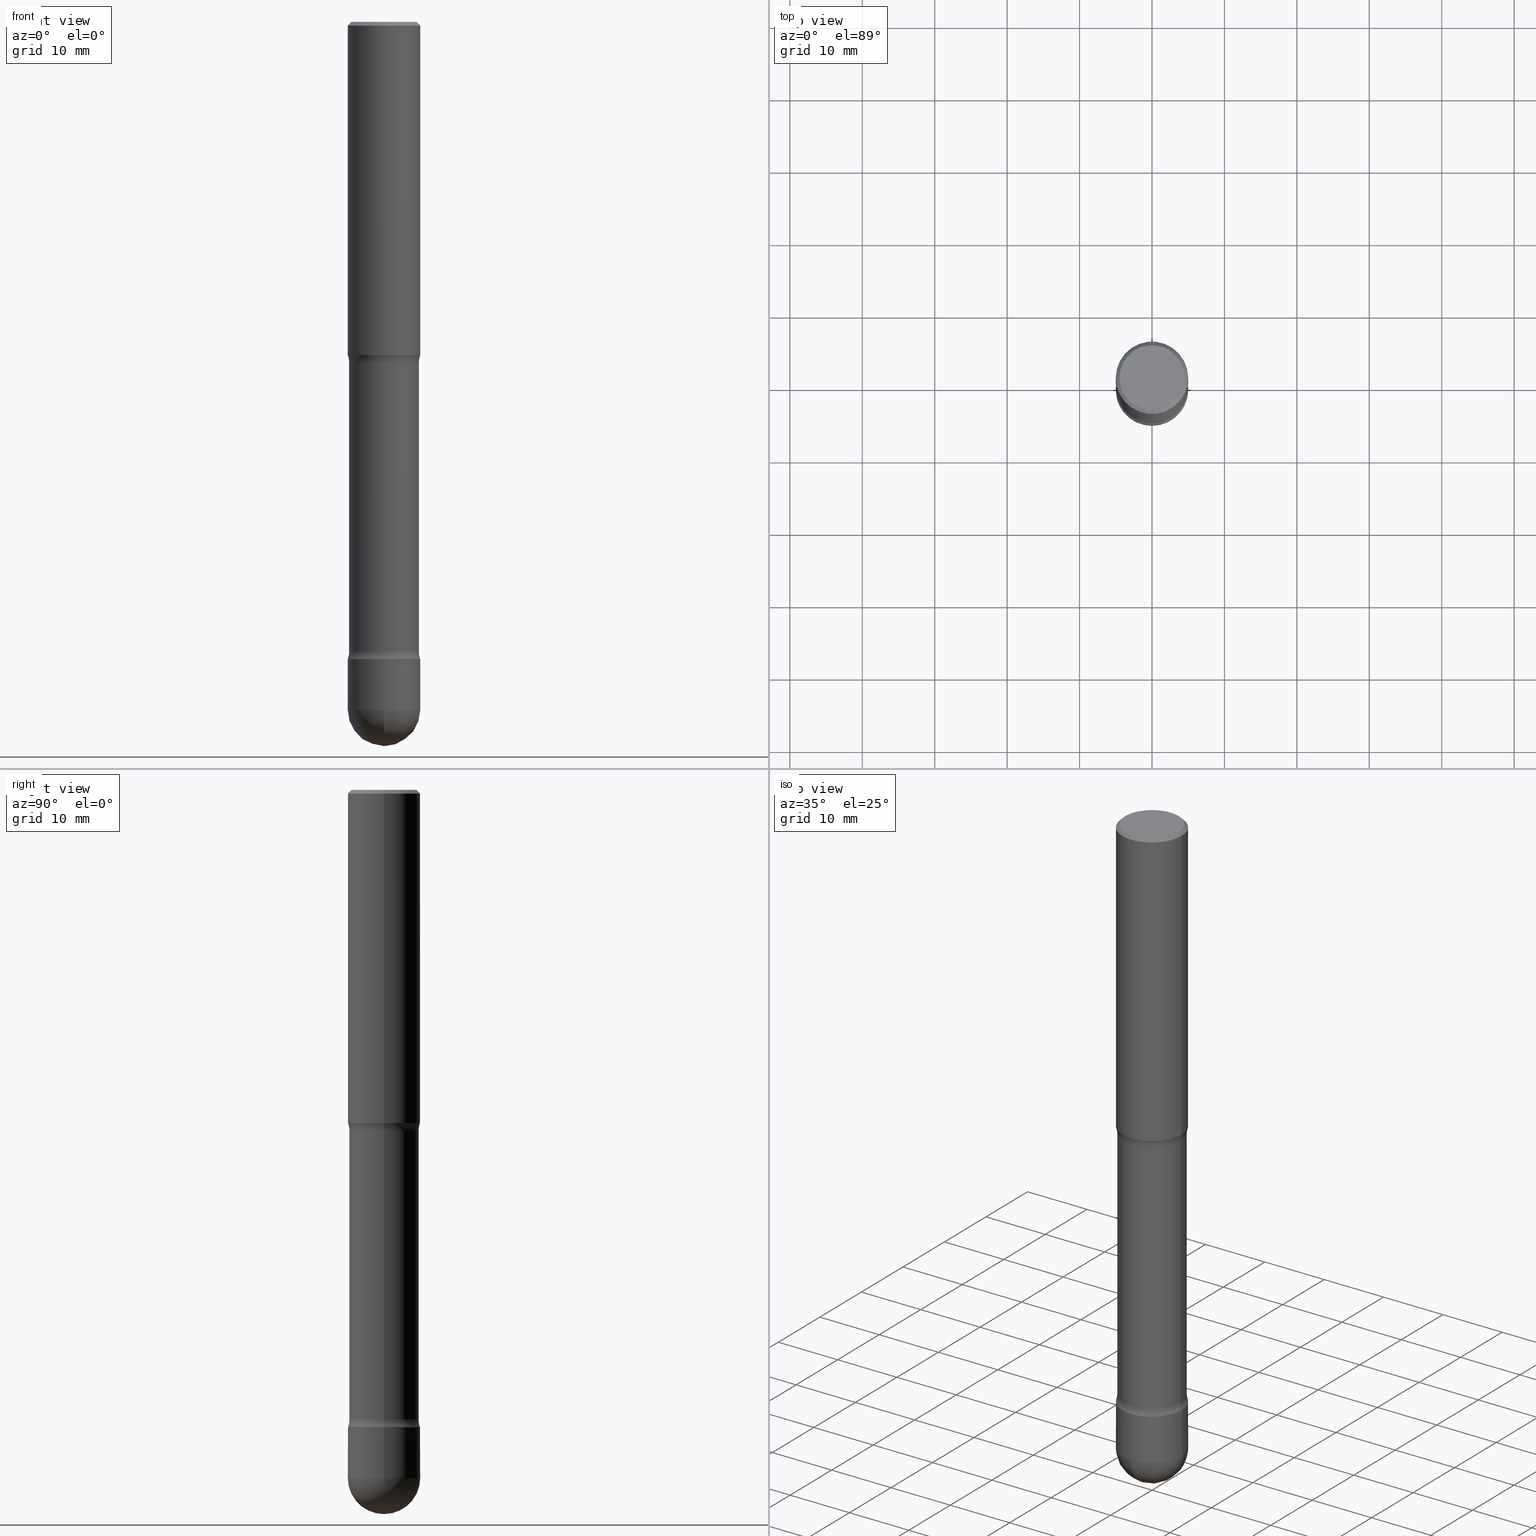
[diagram: canonical four-view strip — front | top / right | iso, engineering-drawing reading convention]
A machine part, canonical four-view strip (front | top / right | iso — engineering-drawing reading convention). The complete STEP part file that produces these views, byte-faithful:
ISO-10303-21;
HEADER;
FILE_DESCRIPTION (( 'STEP AP203' ),
    '1' );
FILE_NAME ('44583.STEP',
    '2024-02-29T19:25:22',
    ( '' ),
    ( '' ),
    'SwSTEP 2.0',
    'SolidWorks 2023',
    '' );
FILE_SCHEMA (( 'CONFIG_CONTROL_DESIGN' ));
ENDSEC;

DATA;
#1 = ORIENTED_EDGE ( 'NONE', *, *, #542, .F. ) ;
#2 = ORIENTED_EDGE ( 'NONE', *, *, #195, .T. ) ;
#3 = CARTESIAN_POINT ( 'NONE',  ( 9.146420155453339430E-29, -1.305866392947419182E-14, -3.740150000000000308 ) ) ;
#4 = PRODUCT_DEFINITION_SHAPE ( 'NONE', 'NONE',  #67 ) ;
#5 = CIRCLE ( 'NONE', #526, 0.1768499999999997851 ) ;
#6 = CIRCLE ( 'NONE', #206, 0.1968499999999998307 ) ;
#7 = ORIENTED_EDGE ( 'NONE', *, *, #407, .T. ) ;
#8 = DIRECTION ( 'NONE',  ( -2.438088387897960049E-29, 3.491481338843145188E-15, 1.000000000000000000 ) ) ;
#9 = SPHERICAL_SURFACE ( 'NONE', #527, 0.1968499999999998307 ) ;
#10 = DIRECTION ( 'NONE',  ( 2.445468806185136597E-29, -3.491481338843145583E-15, -1.000000000000000000 ) ) ;
#11 = ORIENTED_EDGE ( 'NONE', *, *, #551, .T. ) ;
#12 = EDGE_CURVE ( 'NONE', #530, #308, #418, .T. ) ;
#13 = FACE_OUTER_BOUND ( 'NONE', #466, .T. ) ;
#14 = CIRCLE ( 'NONE', #284, 0.1968499999999993588 ) ;
#15 = EDGE_LOOP ( 'NONE', ( #414, #11, #221, #268 ) ) ;
#16 = CARTESIAN_POINT ( 'NONE',  ( 4.890937612370220610E-31, -6.982962677686216421E-17, -0.01999999999999978531 ) ) ;
#17 = EDGE_CURVE ( 'NONE', #520, #308, #348, .T. ) ;
#18 = CARTESIAN_POINT ( 'NONE',  ( -0.1967173271255960032, -1.072163397737945290E-14, -3.464232672874403285 ) ) ;
#19 = CARTESIAN_POINT ( 'NONE',  ( 0.1968499999999998307, -1.420318657638186952E-15, -0.01999999999999978531 ) ) ;
#20 = EDGE_LOOP ( 'NONE', ( #62, #359, #282, #273, #309 ) ) ;
#21 = ORIENTED_EDGE ( 'NONE', *, *, #434, .T. ) ;
#22 = VECTOR ( 'NONE', #442, 39.37007874015748143 ) ;
#23 = AXIS2_PLACEMENT_3D ( 'NONE', #211, #554, #355 ) ;
#24 = CARTESIAN_POINT ( 'NONE',  ( -0.3143499999999886940, -9.752591404053135699E-15, -3.421953194726922831 ) ) ;
#25 = DIRECTION ( 'NONE',  ( 2.445468806185136597E-29, -3.491481338843145583E-15, -1.000000000000000000 ) ) ;
#26 = DIRECTION ( 'NONE',  ( 2.445468806185136877E-29, -3.491481338843145188E-15, -1.000000000000000000 ) ) ;
#27 = CARTESIAN_POINT ( 'NONE',  ( -1.374596203102447142E-15, -0.1968500000000126260, -3.740149999999999864 ) ) ;
#28 = VERTEX_POINT ( 'NONE', #249 ) ;
#29 = EDGE_CURVE ( 'NONE', #545, #312, #169, .T. ) ;
#30 =( NAMED_UNIT ( * ) PLANE_ANGLE_UNIT ( ) SI_UNIT ( $, .RADIAN. ) );
#31 = AXIS2_PLACEMENT_3D ( 'NONE', #212, #395, #306 ) ;
#32 = CYLINDRICAL_SURFACE ( 'NONE', #303, 0.1968499999999993311 ) ;
#33 = ORIENTED_EDGE ( 'NONE', *, *, #29, .F. ) ;
#34 = PERSON_AND_ORGANIZATION ( #267, #362 ) ;
#35 = EDGE_CURVE ( 'NONE', #49, #253, #397, .T. ) ;
#36 = DATE_AND_TIME ( #517, #172 ) ;
#37 = EDGE_CURVE ( 'NONE', #28, #492, #369, .T. ) ;
#38 = EDGE_CURVE ( 'NONE', #497, #539, #493, .T. ) ;
#39 = CARTESIAN_POINT ( 'NONE',  ( 8.472571225909024784E-29, -1.209658624655596216E-14, -3.464599999999999902 ) ) ;
#40 = DIRECTION ( 'NONE',  ( 1.000000000000000000, -6.982962677686266711E-15, 4.876176775795935793E-29 ) ) ;
#41 = EDGE_LOOP ( 'NONE', ( #97, #272, #74, #177 ) ) ;
#42 = CARTESIAN_POINT ( 'NONE',  ( 0.000000000000000000, 0.000000000000000000, 0.000000000000000000 ) ) ;
#43 = AXIS2_PLACEMENT_3D ( 'NONE', #24, #291, #190 ) ;
#44 = AXIS2_PLACEMENT_3D ( 'NONE', #271, #121, #209 ) ;
#45 = CARTESIAN_POINT ( 'NONE',  ( 8.472571225909024784E-29, -1.209658624655596216E-14, -3.464599999999999902 ) ) ;
#46 = ORIENTED_EDGE ( 'NONE', *, *, #37, .F. ) ;
#47 = APPROVAL_ROLE ( '' ) ;
#48 = DIRECTION ( 'NONE',  ( -2.445468806185136597E-29, 3.491481338843145583E-15, 1.000000000000000000 ) ) ;
#49 = VERTEX_POINT ( 'NONE', #242 ) ;
#51 = AXIS2_PLACEMENT_3D ( 'NONE', #435, #164, #561 ) ;
#50 = DIRECTION ( 'NONE',  ( -2.445468806185136597E-29, 3.491481338843145583E-15, 1.000000000000000000 ) ) ;
#52 = LOCAL_TIME ( 14, 25, 22.00000000000000000, #556 ) ;
#53 = EDGE_CURVE ( 'NONE', #253, #49, #233, .T. ) ;
#54 = APPROVAL ( #398, 'UNSPECIFIED' ) ;
#55 = DIRECTION ( 'NONE',  ( -2.445468806185136597E-29, 3.491481338843145583E-15, 1.000000000000000000 ) ) ;
#56 = DIRECTION ( 'NONE',  ( 2.445468806185136597E-29, -3.491481338843145583E-15, -1.000000000000000000 ) ) ;
#57 = EDGE_CURVE ( 'NONE', #495, #530, #387, .T. ) ;
#58 = CARTESIAN_POINT ( 'NONE',  ( 1.371104721763778671E-15, 0.1963499999999872847, -3.464600000000000346 ) ) ;
#59 = EDGE_LOOP ( 'NONE', ( #156, #509, #524, #1, #427 ) ) ;
#60 = DIRECTION ( 'NONE',  ( 2.445468806185136597E-29, -3.491481338843145583E-15, -1.000000000000000000 ) ) ;
#61 = CIRCLE ( 'NONE', #314, 0.1968499999999998307 ) ;
#62 = ORIENTED_EDGE ( 'NONE', *, *, #167, .F. ) ;
#63 = DIRECTION ( 'NONE',  ( -1.000000000000000000, 6.982962677686267499E-15, 0.000000000000000000 ) ) ;
#64 = DIRECTION ( 'NONE',  ( 1.000000000000000000, -6.982962677686271444E-15, 0.000000000000000000 ) ) ;
#65 = ORIENTED_EDGE ( 'NONE', *, *, #396, .F. ) ;
#66 = CALENDAR_DATE ( 2024, 29, 2 ) ;
#67 = PRODUCT_DEFINITION ( 'UNKNOWN', '', #234, #331 ) ;
#68 = DIRECTION ( 'NONE',  ( 2.438088387897960049E-29, -3.491481338843145188E-15, -1.000000000000000000 ) ) ;
#69 = AXIS2_PLACEMENT_3D ( 'NONE', #376, #194, #63 ) ;
#70 = AXIS2_PLACEMENT_3D ( 'NONE', #263, #94, #487 ) ;
#71 = CARTESIAN_POINT ( 'NONE',  ( -0.1968499999999998307, 1.304766576325678310E-15, -0.01999999999999978531 ) ) ;
#72 = APPLICATION_CONTEXT ( 'configuration controlled 3d designs of mechanical parts and assemblies' ) ;
#73 =( LENGTH_UNIT ( ) NAMED_UNIT ( * ) SI_UNIT ( $, .METRE. ) );
#74 = ORIENTED_EDGE ( 'NONE', *, *, #213, .T. ) ;
#75 = DATE_AND_TIME ( #264, #411 ) ;
#76 = LINE ( 'NONE', #168, #22 ) ;
#77 = AXIS2_PLACEMENT_3D ( 'NONE', #150, #459, #237 ) ;
#78 = APPROVAL_PERSON_ORGANIZATION ( #34, #91, #47 ) ;
#79 = ADVANCED_FACE ( 'NONE', ( #106 ), #223, .T. ) ;
#80 = ADVANCED_FACE ( 'NONE', ( #203 ), #115, .T. ) ;
#81 = FACE_OUTER_BOUND ( 'NONE', #20, .T. ) ;
#82 = SHAPE_DEFINITION_REPRESENTATION ( #4, #187 ) ;
#83 = VERTEX_POINT ( 'NONE', #27 ) ;
#84 = AXIS2_PLACEMENT_3D ( 'NONE', #39, #354, #522 ) ;
#85 = EDGE_LOOP ( 'NONE', ( #405, #245, #285, #474 ) ) ;
#86 = APPROVAL_PERSON_ORGANIZATION ( #256, #54, #127 ) ;
#87 = DIRECTION ( 'NONE',  ( -0.7071067811866460495, 7.493145998870710725E-15, 0.7071067811864489849 ) ) ;
#88 = VERTEX_POINT ( 'NONE', #386 ) ;
#89 = DIRECTION ( 'NONE',  ( 2.445468806185136877E-29, -3.491481338843145188E-15, -1.000000000000000000 ) ) ;
#90 = ADVANCED_FACE ( 'NONE', ( #261 ), #347, .T. ) ;
#91 = APPROVAL ( #481, 'UNSPECIFIED' ) ;
#92 = FACE_OUTER_BOUND ( 'NONE', #15, .T. ) ;
#93 = AXIS2_PLACEMENT_3D ( 'NONE', #507, #472, #432 ) ;
#94 = DIRECTION ( 'NONE',  ( 2.445468806185136597E-29, -3.491481338843145583E-15, -1.000000000000000000 ) ) ;
#95 = CARTESIAN_POINT ( 'NONE',  ( -0.1963499999999993584, -1.069948931888517385E-14, -3.464599999999999902 ) ) ;
#96 = DIRECTION ( 'NONE',  ( -1.000000000000000000, 6.982962677686264344E-15, 0.000000000000000000 ) ) ;
#97 = ORIENTED_EDGE ( 'NONE', *, *, #407, .F. ) ;
#98 = FACE_OUTER_BOUND ( 'NONE', #186, .T. ) ;
#99 = ORIENTED_EDGE ( 'NONE', *, *, #551, .F. ) ;
#100 = CIRCLE ( 'NONE', #475, 0.1968499999999993033 ) ;
#101 = DIRECTION ( 'NONE',  ( 2.445468806185136597E-29, -3.491481338843145583E-15, -1.000000000000000000 ) ) ;
#102 = LOCAL_TIME ( 14, 25, 22.00000000000000000, #464 ) ;
#103 = DIRECTION ( 'NONE',  ( 2.445468806185136597E-29, -3.491481338843145583E-15, -1.000000000000000000 ) ) ;
#104 = ORIENTED_EDGE ( 'NONE', *, *, #29, .T. ) ;
#105 = PERSON_AND_ORGANIZATION_ROLE ( 'creator' ) ;
#106 = FACE_OUTER_BOUND ( 'NONE', #356, .T. ) ;
#107 = ORIENTED_EDGE ( 'NONE', *, *, #318, .F. ) ;
#108 = ADVANCED_FACE ( 'NONE', ( #81 ), #32, .T. ) ;
#109 = ORIENTED_EDGE ( 'NONE', *, *, #375, .T. ) ;
#110 = CARTESIAN_POINT ( 'NONE',  ( -0.1968499999999998307, 1.304766576325678310E-15, -0.01999999999999978531 ) ) ;
#111 = PERSON_AND_ORGANIZATION ( #267, #362 ) ;
#112 = AXIS2_PLACEMENT_3D ( 'NONE', #155, #328, #499 ) ;
#113 = CC_DESIGN_APPROVAL ( #91, ( #234 ) ) ;
#114 = EDGE_CURVE ( 'NONE', #326, #83, #410, .T. ) ;
#115 = CYLINDRICAL_SURFACE ( 'NONE', #93, 0.1893499999999998795 ) ;
#116 = DIRECTION ( 'NONE',  ( -2.445468806185136877E-29, 3.491481338843145188E-15, 1.000000000000000000 ) ) ;
#117 = VERTEX_POINT ( 'NONE', #394 ) ;
#118 = CC_DESIGN_DATE_AND_TIME_ASSIGNMENT ( #380, #431, ( #67 ) ) ;
#119 = DATE_AND_TIME ( #441, #52 ) ;
#120 = FACE_OUTER_BOUND ( 'NONE', #479, .T. ) ;
#121 = DIRECTION ( 'NONE',  ( -2.445468806185136597E-29, 3.491481338843145583E-15, 1.000000000000000000 ) ) ;
#122 = ORIENTED_EDGE ( 'NONE', *, *, #531, .T. ) ;
#123 = AXIS2_PLACEMENT_3D ( 'NONE', #371, #429, #537 ) ;
#124 = DATE_TIME_ROLE ( 'classification_date' ) ;
#125 = ADVANCED_FACE ( 'NONE', ( #390 ), #166, .T. ) ;
#126 = EDGE_LOOP ( 'NONE', ( #382, #346, #239, #289 ) ) ;
#127 = APPROVAL_ROLE ( '' ) ;
#128 = DIRECTION ( 'NONE',  ( 0.7071067811866460495, -2.468850131083289285E-15, 0.7071067811864489849 ) ) ;
#129 = ORIENTED_EDGE ( 'NONE', *, *, #529, .T. ) ;
#130 = ORIENTED_EDGE ( 'NONE', *, *, #383, .F. ) ;
#131 = FACE_OUTER_BOUND ( 'NONE', #41, .T. ) ;
#132 = CARTESIAN_POINT ( 'NONE',  ( 0.3143499999999884165, -8.628570775016575116E-15, -1.853646805273080567 ) ) ;
#133 = EDGE_CURVE ( 'NONE', #83, #513, #552, .T. ) ;
#134 = DIRECTION ( 'NONE',  ( 2.445468806185136597E-29, -3.491481338843145583E-15, -1.000000000000000000 ) ) ;
#135 = VECTOR ( 'NONE', #128, 39.37007874015748143 ) ;
#136 = AXIS2_PLACEMENT_3D ( 'NONE', #510, #157, #501 ) ;
#137 = EDGE_LOOP ( 'NONE', ( #368, #559 ) ) ;
#138 = DIRECTION ( 'NONE',  ( -1.000000000000000000, 6.982962677686266711E-15, 0.000000000000000000 ) ) ;
#139 = CARTESIAN_POINT ( 'NONE',  ( 9.602559767347137983E-29, -1.378212278938728887E-14, -3.937000000000000277 ) ) ;
#140 = VERTEX_POINT ( 'NONE', #392 ) ;
#141 = UNCERTAINTY_MEASURE_WITH_UNIT (LENGTH_MEASURE( 1.000000000000000082E-05 ), #254, 'distance_accuracy_value', 'NONE');
#142 = EDGE_CURVE ( 'NONE', #539, #497, #14, .T. ) ;
#143 = EDGE_CURVE ( 'NONE', #513, #117, #313, .T. ) ;
#144 = AXIS2_PLACEMENT_3D ( 'NONE', #515, #558, #258 ) ;
#145 = AXIS2_PLACEMENT_3D ( 'NONE', #521, #219, #525 ) ;
#146 = CARTESIAN_POINT ( 'NONE',  ( -0.1968499999999993033, -1.117892171267132551E-14, -3.740150000000000308 ) ) ;
#147 = VERTEX_POINT ( 'NONE', #165 ) ;
#148 = ORIENTED_EDGE ( 'NONE', *, *, #213, .F. ) ;
#149 = ADVANCED_FACE ( 'NONE', ( #262 ), #176, .T. ) ;
#150 = CARTESIAN_POINT ( 'NONE',  ( 4.533035439980052208E-29, -6.471973229417174909E-15, -1.853646805273080567 ) ) ;
#151 = DIRECTION ( 'NONE',  ( -0.7071067811865523467, 2.468850131082307548E-15, -0.7071067811865426878 ) ) ;
#152 = AXIS2_PLACEMENT_3D ( 'NONE', #563, #351, #311 ) ;
#153 = DIRECTION ( 'NONE',  ( 1.000000000000000000, 0.000000000000000000, 0.000000000000000000 ) ) ;
#154 = SECURITY_CLASSIFICATION ( '', '', #208 ) ;
#155 = CARTESIAN_POINT ( 'NONE',  ( 0.000000000000000000, 0.000000000000000000, 0.000000000000000000 ) ) ;
#156 = ORIENTED_EDGE ( 'NONE', *, *, #175, .T. ) ;
#157 = DIRECTION ( 'NONE',  ( 2.445468806185136597E-29, -3.491481338843145583E-15, -1.000000000000000000 ) ) ;
#158 = ORIENTED_EDGE ( 'NONE', *, *, #320, .T. ) ;
#159 = CALENDAR_DATE ( 2024, 29, 2 ) ;
#160 = DIRECTION ( 'NONE',  ( 2.445468806185136597E-29, -3.491481338843145583E-15, -1.000000000000000000 ) ) ;
#161 = CARTESIAN_POINT ( 'NONE',  ( -0.1768499999999997851, 1.234936949548814815E-15, -8.623518627995101929E-30 ) ) ;
#162 = DIRECTION ( 'NONE',  ( -2.445468806185136597E-29, 3.491481338843145583E-15, 1.000000000000000000 ) ) ;
#163 = CARTESIAN_POINT ( 'NONE',  ( -0.1893499999999997130, -1.062546173876383384E-14, -3.421953194726919723 ) ) ;
#164 = DIRECTION ( 'NONE',  ( -2.445468806185136597E-29, 3.491481338843145583E-15, 1.000000000000000000 ) ) ;
#165 = CARTESIAN_POINT ( 'NONE',  ( 0.1967173271255960032, -1.344488255962380683E-14, -3.464232672874403285 ) ) ;
#166 = CYLINDRICAL_SURFACE ( 'NONE', #565, 0.1968499999999999417 ) ;
#167 = EDGE_CURVE ( 'NONE', #326, #539, #76, .T. ) ;
#168 = CARTESIAN_POINT ( 'NONE',  ( -0.1968499999999993311, 1.398703375343752463E-15, -9.682923725166748645E-30 ) ) ;
#169 = CIRCLE ( 'NONE', #43, 0.1249999999999887590 ) ;
#170 = ORIENTED_EDGE ( 'NONE', *, *, #383, .T. ) ;
#171 = AXIS2_PLACEMENT_3D ( 'NONE', #440, #162, #343 ) ;
#172 = LOCAL_TIME ( 14, 25, 22.00000000000000000, #349 ) ;
#173 = ORIENTED_EDGE ( 'NONE', *, *, #114, .F. ) ;
#174 = PERSON_AND_ORGANIZATION_ROLE ( 'design_supplier' ) ;
#175 = EDGE_CURVE ( 'NONE', #117, #326, #100, .T. ) ;
#176 = CYLINDRICAL_SURFACE ( 'NONE', #152, 0.1968499999999999417 ) ;
#177 = ORIENTED_EDGE ( 'NONE', *, *, #396, .T. ) ;
#178 = DIRECTION ( 'NONE',  ( 2.445468806185136597E-29, -3.491481338843145583E-15, -1.000000000000000000 ) ) ;
#179 = DIRECTION ( 'NONE',  ( -2.445468806185136597E-29, 3.491481338843145583E-15, 1.000000000000000000 ) ) ;
#180 = AXIS2_PLACEMENT_3D ( 'NONE', #321, #60, #232 ) ;
#181 = DIRECTION ( 'NONE',  ( -6.982962677686266711E-15, -1.000000000000000000, 3.491481338843145583E-15 ) ) ;
#182 = CARTESIAN_POINT ( 'NONE',  ( 8.472571225909024784E-29, -1.209658624655596216E-14, -3.464599999999999902 ) ) ;
#183 = ORIENTED_EDGE ( 'NONE', *, *, #413, .F. ) ;
#184 = ADVANCED_FACE ( 'NONE', ( #120 ), #478, .F. ) ;
#185 = DIRECTION ( 'NONE',  ( 1.000000000000000000, -6.982962677686265922E-15, 4.876176775795935793E-29 ) ) ;
#186 = EDGE_LOOP ( 'NONE', ( #502, #450 ) ) ;
#187 = ADVANCED_BREP_SHAPE_REPRESENTATION ( '44583', ( #363, #549, #259 ), #286 ) ;
#188 = VECTOR ( 'NONE', #471, 39.37007874015748143 ) ;
#189 = VECTOR ( 'NONE', #384, 39.37007874015748143 ) ;
#190 = DIRECTION ( 'NONE',  ( 1.000000000000000000, -6.982962677686269866E-15, 0.000000000000000000 ) ) ;
#191 = APPLICATION_CONTEXT ( 'configuration controlled 3d designs of mechanical parts and assemblies' ) ;
#192 = LINE ( 'NONE', #329, #458 ) ;
#193 = ORIENTED_EDGE ( 'NONE', *, *, #529, .F. ) ;
#194 = DIRECTION ( 'NONE',  ( 2.445468806185136597E-29, -3.491481338843145583E-15, -1.000000000000000000 ) ) ;
#195 = EDGE_CURVE ( 'NONE', #147, #140, #338, .T. ) ;
#196 = CARTESIAN_POINT ( 'NONE',  ( 4.428744008001288403E-29, -6.323072704644945461E-15, -1.811000000000002608 ) ) ;
#197 = AXIS2_PLACEMENT_3D ( 'NONE', #132, #274, #528 ) ;
#198 = PERSON_AND_ORGANIZATION_ROLE ( 'design_owner' ) ;
#199 = AXIS2_PLACEMENT_3D ( 'NONE', #460, #339, #204 ) ;
#200 = EDGE_LOOP ( 'NONE', ( #301, #260, #129, #130 ) ) ;
#201 = APPLICATION_PROTOCOL_DEFINITION ( 'international standard', 'config_control_design', 1994, #191 ) ;
#202 = CARTESIAN_POINT ( 'NONE',  ( 9.129586207050842305E-29, -1.308277110171540879E-14, -3.740150000000000308 ) ) ;
#203 = FACE_OUTER_BOUND ( 'NONE', #373, .T. ) ;
#204 = DIRECTION ( 'NONE',  ( -1.000000000000000000, 6.982962677686266711E-15, 0.000000000000000000 ) ) ;
#205 = AXIS2_PLACEMENT_3D ( 'NONE', #538, #101, #443 ) ;
#206 = AXIS2_PLACEMENT_3D ( 'NONE', #202, #298, #433 ) ;
#207 = CARTESIAN_POINT ( 'NONE',  ( 0.000000000000000000, 0.000000000000000000, 0.000000000000000000 ) ) ;
#208 = SECURITY_CLASSIFICATION_LEVEL ( 'unclassified' ) ;
#209 = DIRECTION ( 'NONE',  ( 1.000000000000000000, -6.982962677686263555E-15, 0.000000000000000000 ) ) ;
#210 = FACE_OUTER_BOUND ( 'NONE', #544, .T. ) ;
#211 = CARTESIAN_POINT ( 'NONE',  ( 9.129586207050842305E-29, -1.308277110171540879E-14, -3.740150000000000308 ) ) ;
#212 = CARTESIAN_POINT ( 'NONE',  ( 0.3143499999999886940, -1.410428326738313844E-14, -3.421953194726922831 ) ) ;
#213 = EDGE_CURVE ( 'NONE', #88, #147, #476, .T. ) ;
#214 = DIRECTION ( 'NONE',  ( 2.445468806185136597E-29, -3.491481338843145583E-15, -1.000000000000000000 ) ) ;
#215 = CARTESIAN_POINT ( 'NONE',  ( -0.1963499999999993584, -1.070143558489101000E-14, -3.464599999999999902 ) ) ;
#216 = DIRECTION ( 'NONE',  ( 2.445468806185136597E-29, -3.491481338843145583E-15, -1.000000000000000000 ) ) ;
#217 = CONICAL_SURFACE ( 'NONE', #482, 0.1963499999999993584, 0.7853981633975876120 ) ;
#218 = ORIENTED_EDGE ( 'NONE', *, *, #195, .F. ) ;
#219 = DIRECTION ( 'NONE',  ( -1.000000000000000000, 6.982962677686265922E-15, -4.883557194083112340E-29 ) ) ;
#220 = CC_DESIGN_PERSON_AND_ORGANIZATION_ASSIGNMENT ( #111, #105, ( #67 ) ) ;
#221 = ORIENTED_EDGE ( 'NONE', *, *, #143, .F. ) ;
#222 = CARTESIAN_POINT ( 'NONE',  ( 8.472571225909024784E-29, -1.209658624655596216E-14, -3.464599999999999902 ) ) ;
#223 = CONICAL_SURFACE ( 'NONE', #377, 0.1968499999999998307, 0.7853981633974551624 ) ;
#224 = LOCAL_TIME ( 14, 25, 22.00000000000000000, #546 ) ;
#225 = DIRECTION ( 'NONE',  ( 1.000000000000000000, -6.982962677686264344E-15, 0.000000000000000000 ) ) ;
#226 = CARTESIAN_POINT ( 'NONE',  ( 1.234936949548814617E-15, 0.1768499999999997851, -6.153342185293593634E-16 ) ) ;
#227 = DIRECTION ( 'NONE',  ( 1.000000000000000000, -6.982962677686265133E-15, 4.883557194083112340E-29 ) ) ;
#228 = EDGE_CURVE ( 'NONE', #28, #49, #416, .T. ) ;
#229 = CARTESIAN_POINT ( 'NONE',  ( -0.1968499999999999417, -1.072199004345342055E-14, -3.464599999999999902 ) ) ;
#230 = FACE_OUTER_BOUND ( 'NONE', #137, .T. ) ;
#231 = CARTESIAN_POINT ( 'NONE',  ( 9.129586207050842305E-29, -1.308277110171540879E-14, -3.740150000000000308 ) ) ;
#232 = DIRECTION ( 'NONE',  ( -1.000000000000000000, 6.982962677686263555E-15, 0.000000000000000000 ) ) ;
#233 = CIRCLE ( 'NONE', #436, 0.1968500000000000527 ) ;
#234 = PRODUCT_DEFINITION_FORMATION_WITH_SPECIFIED_SOURCE ( 'ANY', '', #278, .NOT_KNOWN. ) ;
#235 = DIRECTION ( 'NONE',  ( 0.7071067811865523467, -7.319954787623271823E-15, -0.7071067811865426878 ) ) ;
#236 = ORIENTED_EDGE ( 'NONE', *, *, #17, .T. ) ;
#237 = DIRECTION ( 'NONE',  ( -1.000000000000000000, 6.982962677686266711E-15, 0.000000000000000000 ) ) ;
#238 = CARTESIAN_POINT ( 'NONE',  ( 0.000000000000000000, 0.000000000000000000, 0.000000000000000000 ) ) ;
#239 = ORIENTED_EDGE ( 'NONE', *, *, #53, .F. ) ;
#240 = CC_DESIGN_PERSON_AND_ORGANIZATION_ASSIGNMENT ( #293, #198, ( #278 ) ) ;
#241 = FACE_OUTER_BOUND ( 'NONE', #332, .T. ) ;
#242 = CARTESIAN_POINT ( 'NONE',  ( 0.1968500000000000527, -4.546940196572229414E-15, -1.811000000000002608 ) ) ;
#243 = VERTEX_POINT ( 'NONE', #139 ) ;
#244 = EDGE_CURVE ( 'NONE', #520, #49, #317, .T. ) ;
#245 = ORIENTED_EDGE ( 'NONE', *, *, #531, .F. ) ;
#246 = EDGE_LOOP ( 'NONE', ( #65, #2, #170, #33 ) ) ;
#247 = VECTOR ( 'NONE', #235, 39.37007874015748143 ) ;
#248 = PERSON_AND_ORGANIZATION ( #267, #362 ) ;
#249 = CARTESIAN_POINT ( 'NONE',  ( 0.1893500000000000461, -7.722285130400744090E-15, -1.853646805273080567 ) ) ;
#250 = APPROVAL_DATE_TIME ( #333, #325 ) ;
#251 = CARTESIAN_POINT ( 'NONE',  ( 0.1968499999999993588, -1.347118244965850061E-14, -3.464599999999999902 ) ) ;
#252 = EDGE_CURVE ( 'NONE', #492, #253, #480, .T. ) ;
#253 = VERTEX_POINT ( 'NONE', #364 ) ;
#254 =( CONVERSION_BASED_UNIT ( 'INCH', #420 ) LENGTH_UNIT ( ) NAMED_UNIT ( #447 ) );
#255 = ORIENTED_EDGE ( 'NONE', *, *, #142, .T. ) ;
#256 = PERSON_AND_ORGANIZATION ( #267, #362 ) ;
#257 = TOROIDAL_SURFACE ( 'NONE', #205, 0.3143499999999886940, 0.1249999999999887590 ) ;
#258 = DIRECTION ( 'NONE',  ( -1.000000000000000000, 6.982962677686266711E-15, -4.883557194083112901E-29 ) ) ;
#259 = AXIS2_PLACEMENT_3D ( 'NONE', #238, #374, #153 ) ;
#260 = ORIENTED_EDGE ( 'NONE', *, *, #37, .T. ) ;
#261 = FACE_OUTER_BOUND ( 'NONE', #59, .T. ) ;
#262 = FACE_OUTER_BOUND ( 'NONE', #126, .T. ) ;
#263 = CARTESIAN_POINT ( 'NONE',  ( 8.472571225909024784E-29, -1.209658624655596216E-14, -3.464599999999999902 ) ) ;
#264 = CALENDAR_DATE ( 2024, 29, 2 ) ;
#265 = CLOSED_SHELL ( 'NONE', ( #90, #454, #485, #108, #184 ) ) ;
#266 = AXIS2_PLACEMENT_3D ( 'NONE', #45, #55, #467 ) ;
#267 = PERSON ( 'UNSPECIFIED', 'UNSPECIFIED', 'UNSPECIFIED', ('UNSPECIFIED'), ('UNSPECIFIED'), ('UNSPECIFIED') ) ;
#268 = ORIENTED_EDGE ( 'NONE', *, *, #133, .F. ) ;
#269 = DIRECTION ( 'NONE',  ( 2.445468806185136597E-29, -3.491481338843145583E-15, -1.000000000000000000 ) ) ;
#270 = PRODUCT_RELATED_PRODUCT_CATEGORY ( 'detail', '', ( #278 ) ) ;
#271 = CARTESIAN_POINT ( 'NONE',  ( 9.146420155453339430E-29, -1.305866392947419182E-14, -3.740150000000000308 ) ) ;
#272 = ORIENTED_EDGE ( 'NONE', *, *, #451, .F. ) ;
#273 = ORIENTED_EDGE ( 'NONE', *, *, #542, .T. ) ;
#274 = DIRECTION ( 'NONE',  ( 6.860497997771531562E-15, 1.000000000000000000, -3.491481338843145583E-15 ) ) ;
#275 = ADVANCED_FACE ( 'NONE', ( #98 ), #283, .T. ) ;
#276 = DIRECTION ( 'NONE',  ( 1.000000000000000000, -6.982962677686269077E-15, 0.000000000000000000 ) ) ;
#277 = EDGE_CURVE ( 'NONE', #545, #147, #540, .T. ) ;
#278 = PRODUCT ( '44583', '44583', '', ( #512 ) ) ;
#279 = AXIS2_PLACEMENT_3D ( 'NONE', #226, #8, #185 ) ;
#280 = ORIENTED_EDGE ( 'NONE', *, *, #523, .T. ) ;
#281 = PLANE ( 'NONE',  #337 ) ;
#282 = ORIENTED_EDGE ( 'NONE', *, *, #133, .T. ) ;
#283 = PLANE ( 'NONE',  #279 ) ;
#284 = AXIS2_PLACEMENT_3D ( 'NONE', #300, #557, #345 ) ;
#285 = ORIENTED_EDGE ( 'NONE', *, *, #252, .T. ) ;
#286 =( GEOMETRIC_REPRESENTATION_CONTEXT ( 3 ) GLOBAL_UNCERTAINTY_ASSIGNED_CONTEXT ( ( #141 ) ) GLOBAL_UNIT_ASSIGNED_CONTEXT ( ( #254, #30, #389 ) ) REPRESENTATION_CONTEXT ( 'NONE', 'WORKASPACE' ) );
#287 = DIRECTION ( 'NONE',  ( -1.000000000000000000, 6.982962677686266711E-15, -4.876176775795935793E-29 ) ) ;
#288 = CARTESIAN_POINT ( 'NONE',  ( 8.472571225909024784E-29, -1.209658624655596216E-14, -3.464599999999999902 ) ) ;
#289 = ORIENTED_EDGE ( 'NONE', *, *, #523, .F. ) ;
#290 = APPLICATION_PROTOCOL_DEFINITION ( 'international standard', 'config_control_design', 1994, #72 ) ;
#291 = DIRECTION ( 'NONE',  ( -6.982962677686266711E-15, -1.000000000000000000, 3.491481338843145583E-15 ) ) ;
#292 = VERTEX_POINT ( 'NONE', #95 ) ;
#293 = PERSON_AND_ORGANIZATION ( #267, #362 ) ;
#294 = ORIENTED_EDGE ( 'NONE', *, *, #244, .F. ) ;
#295 = AXIS2_PLACEMENT_3D ( 'NONE', #439, #477, #307 ) ;
#296 = CARTESIAN_POINT ( 'NONE',  ( -0.1968499999999993588, -1.117892171267132393E-14, -3.464599999999999902 ) ) ;
#297 = CIRCLE ( 'NONE', #508, 0.1963499999999993584 ) ;
#298 = DIRECTION ( 'NONE',  ( 1.000000000000000000, -7.105427357601001070E-15, 4.926315508542082329E-29 ) ) ;
#299 = DIRECTION ( 'NONE',  ( -1.000000000000000000, 6.982962677686263555E-15, 0.000000000000000000 ) ) ;
#300 = CARTESIAN_POINT ( 'NONE',  ( 8.472571225909024784E-29, -1.209658624655596216E-14, -3.464599999999999902 ) ) ;
#301 = ORIENTED_EDGE ( 'NONE', *, *, #320, .F. ) ;
#302 = ADVANCED_FACE ( 'NONE', ( #230 ), #281, .T. ) ;
#303 = AXIS2_PLACEMENT_3D ( 'NONE', #207, #511, #40 ) ;
#304 = CARTESIAN_POINT ( 'NONE',  ( -0.1893500000000000461, -5.149749246397279985E-15, -1.853646805273080567 ) ) ;
#305 = PERSON_AND_ORGANIZATION ( #267, #362 ) ;
#306 = DIRECTION ( 'NONE',  ( -1.000000000000000000, 6.860497997771526040E-15, 0.000000000000000000 ) ) ;
#307 = DIRECTION ( 'NONE',  ( -1.000000000000000000, 6.982962677686264344E-15, 0.000000000000000000 ) ) ;
#308 = VERTEX_POINT ( 'NONE', #110 ) ;
#309 = ORIENTED_EDGE ( 'NONE', *, *, #142, .F. ) ;
#310 = PERSON_AND_ORGANIZATION ( #267, #362 ) ;
#311 = DIRECTION ( 'NONE',  ( -1.000000000000000000, 6.982962677686270655E-15, 0.000000000000000000 ) ) ;
#312 = VERTEX_POINT ( 'NONE', #163 ) ;
#313 = CIRCLE ( 'NONE', #322, 0.1968499999999993033 ) ;
#314 = AXIS2_PLACEMENT_3D ( 'NONE', #406, #178, #138 ) ;
#315 = EDGE_LOOP ( 'NONE', ( #483, #7, #336, #148 ) ) ;
#316 = FACE_OUTER_BOUND ( 'NONE', #85, .T. ) ;
#317 = LINE ( 'NONE', #484, #468 ) ;
#318 = EDGE_CURVE ( 'NONE', #312, #140, #488, .T. ) ;
#319 = FACE_OUTER_BOUND ( 'NONE', #315, .T. ) ;
#320 = EDGE_CURVE ( 'NONE', #28, #140, #330, .T. ) ;
#321 = CARTESIAN_POINT ( 'NONE',  ( 8.368279793930255374E-29, -1.194768572178372719E-14, -3.421953194726919723 ) ) ;
#322 = AXIS2_PLACEMENT_3D ( 'NONE', #3, #48, #400 ) ;
#323 = TOROIDAL_SURFACE ( 'NONE', #534, 0.3143499999999884165, 0.1249999999999883565 ) ;
#324 = DIRECTION ( 'NONE',  ( -1.000000000000000000, 6.982962677686264344E-15, 0.000000000000000000 ) ) ;
#325 = APPROVAL ( #504, 'UNSPECIFIED' ) ;
#326 = VERTEX_POINT ( 'NONE', #146 ) ;
#327 = EDGE_LOOP ( 'NONE', ( #218, #536, #104, #500 ) ) ;
#328 = DIRECTION ( 'NONE',  ( 2.445468806185136597E-29, -3.491481338843145583E-15, -1.000000000000000000 ) ) ;
#329 = CARTESIAN_POINT ( 'NONE',  ( 0.1968499999999993311, -1.374596203102536875E-15, 9.598753983154267227E-30 ) ) ;
#330 = LINE ( 'NONE', #334, #188 ) ;
#331 = DESIGN_CONTEXT ( 'detailed design', #191, 'design' ) ;
#332 = EDGE_LOOP ( 'NONE', ( #46, #421, #365, #490 ) ) ;
#333 = DATE_AND_TIME ( #159, #224 ) ;
#334 = CARTESIAN_POINT ( 'NONE',  ( 0.1893499999999998795, -1.339562154243400138E-14, -3.464599999999999902 ) ) ;
#335 = DIRECTION ( 'NONE',  ( -1.000000000000000000, 6.982962677686266711E-15, 0.000000000000000000 ) ) ;
#336 = ORIENTED_EDGE ( 'NONE', *, *, #277, .T. ) ;
#337 = AXIS2_PLACEMENT_3D ( 'NONE', #58, #68, #503 ) ;
#338 = CIRCLE ( 'NONE', #31, 0.1249999999999887590 ) ;
#339 = DIRECTION ( 'NONE',  ( 2.445468806185136597E-29, -3.491481338843145583E-15, -1.000000000000000000 ) ) ;
#340 = CARTESIAN_POINT ( 'NONE',  ( 8.368279793930255374E-29, -1.194768572178372719E-14, -3.421953194726919723 ) ) ;
#341 = VECTOR ( 'NONE', #26, 39.37007874015748143 ) ;
#342 = EDGE_CURVE ( 'NONE', #495, #520, #456, .T. ) ;
#343 = DIRECTION ( 'NONE',  ( 1.000000000000000000, -6.982962677686266711E-15, 4.876176775795935793E-29 ) ) ;
#344 = ADVANCED_FACE ( 'NONE', ( #419 ), #257, .F. ) ;
#345 = DIRECTION ( 'NONE',  ( 1.000000000000000000, -6.982962677686271444E-15, 0.000000000000000000 ) ) ;
#346 = ORIENTED_EDGE ( 'NONE', *, *, #244, .T. ) ;
#347 = CYLINDRICAL_SURFACE ( 'NONE', #171, 0.1968499999999993311 ) ;
#348 = CIRCLE ( 'NONE', #424, 0.1968499999999998307 ) ;
#349 = COORDINATED_UNIVERSAL_TIME_OFFSET ( 5, 0, .BEHIND. ) ;
#350 = AXIS2_PLACEMENT_3D ( 'NONE', #366, #56, #324 ) ;
#351 = DIRECTION ( 'NONE',  ( 2.445468806185136597E-29, -3.491481338843145583E-15, -1.000000000000000000 ) ) ;
#352 = ORIENTED_EDGE ( 'NONE', *, *, #57, .T. ) ;
#353 = APPROVAL_DATE_TIME ( #119, #54 ) ;
#354 = DIRECTION ( 'NONE',  ( 2.438088387897960049E-29, -3.491481338843145188E-15, -1.000000000000000000 ) ) ;
#355 = DIRECTION ( 'NONE',  ( -6.982962677686265133E-15, -1.000000000000000000, 2.775563112689119062E-15 ) ) ;
#356 = EDGE_LOOP ( 'NONE', ( #430, #352, #469, #455 ) ) ;
#357 = DIRECTION ( 'NONE',  ( -1.000000000000000000, 6.982962677686266711E-15, -4.883557194083112901E-29 ) ) ;
#358 = CARTESIAN_POINT ( 'NONE',  ( 9.146420155453339430E-29, -1.305866392947419182E-14, -3.740150000000000308 ) ) ;
#359 = ORIENTED_EDGE ( 'NONE', *, *, #114, .T. ) ;
#360 = DIRECTION ( 'NONE',  ( -1.000000000000000000, 6.982962677686270655E-15, 0.000000000000000000 ) ) ;
#361 = CIRCLE ( 'NONE', #180, 0.1893499999999997130 ) ;
#362 = ORGANIZATION ( 'UNSPECIFIED', 'UNSPECIFIED', '' ) ;
#363 = MANIFOLD_SOLID_BREP ( 'Body-Move/Copy2[1]', #265 ) ;
#364 = CARTESIAN_POINT ( 'NONE',  ( -0.1968500000000000527, -4.948476501542403853E-15, -1.811000000000002608 ) ) ;
#365 = ORIENTED_EDGE ( 'NONE', *, *, #35, .T. ) ;
#366 = CARTESIAN_POINT ( 'NONE',  ( 8.471672938881711907E-29, -1.209530373075169141E-14, -3.464232672874403285 ) ) ;
#367 = DIRECTION ( 'NONE',  ( -6.982962677686265133E-15, -1.000000000000000000, 2.775563112689119062E-15 ) ) ;
#368 = ORIENTED_EDGE ( 'NONE', *, *, #451, .T. ) ;
#369 = CIRCLE ( 'NONE', #77, 0.1893500000000000461 ) ;
#370 = APPROVAL_PERSON_ORGANIZATION ( #248, #325, #428 ) ;
#371 = CARTESIAN_POINT ( 'NONE',  ( 4.428744008001288403E-29, -6.323072704644945461E-15, -1.811000000000002608 ) ) ;
#372 = CARTESIAN_POINT ( 'NONE',  ( 0.1968499999999998307, -1.420318657638186952E-15, -0.01999999999999978531 ) ) ;
#373 = EDGE_LOOP ( 'NONE', ( #122, #158, #107, #193 ) ) ;
#374 = DIRECTION ( 'NONE',  ( 0.000000000000000000, 0.000000000000000000, 1.000000000000000000 ) ) ;
#375 = EDGE_CURVE ( 'NONE', #530, #495, #5, .T. ) ;
#376 = CARTESIAN_POINT ( 'NONE',  ( 8.472571225909024784E-29, -1.209658624655596216E-14, -3.464599999999999902 ) ) ;
#377 = AXIS2_PLACEMENT_3D ( 'NONE', #548, #160, #335 ) ;
#378 = DIRECTION ( 'NONE',  ( 2.445468806185136597E-29, -3.491481338843145583E-15, -1.000000000000000000 ) ) ;
#379 = CC_DESIGN_APPROVAL ( #54, ( #154 ) ) ;
#380 = DATE_AND_TIME ( #66, #102 ) ;
#381 = DIRECTION ( 'NONE',  ( -1.000000000000000000, 6.982962677686266711E-15, 0.000000000000000000 ) ) ;
#382 = ORIENTED_EDGE ( 'NONE', *, *, #413, .T. ) ;
#383 = EDGE_CURVE ( 'NONE', #140, #312, #361, .T. ) ;
#384 = DIRECTION ( 'NONE',  ( 2.445468806185136877E-29, -3.491481338843145188E-15, -1.000000000000000000 ) ) ;
#385 = ADVANCED_FACE ( 'NONE', ( #417 ), #422, .T. ) ;
#386 = CARTESIAN_POINT ( 'NONE',  ( 0.1963499999999993584, -1.346833222622179061E-14, -3.464599999999999902 ) ) ;
#387 = CIRCLE ( 'NONE', #112, 0.1768499999999997851 ) ;
#388 = CONICAL_SURFACE ( 'NONE', #401, 0.1968499999999998307, 0.7853981633974551624 ) ;
#389 =( NAMED_UNIT ( * ) SI_UNIT ( $, .STERADIAN. ) SOLID_ANGLE_UNIT ( ) );
#390 = FACE_OUTER_BOUND ( 'NONE', #491, .T. ) ;
#391 = PERSON_AND_ORGANIZATION_ROLE ( 'classification_officer' ) ;
#392 = CARTESIAN_POINT ( 'NONE',  ( 0.1893499999999997130, -1.050886477147849106E-14, -3.421953194726919723 ) ) ;
#393 = ADVANCED_FACE ( 'NONE', ( #241 ), #399, .F. ) ;
#394 = CARTESIAN_POINT ( 'NONE',  ( 1.398703375343845351E-15, 0.1968499999999865357, -3.740150000000000752 ) ) ;
#395 = DIRECTION ( 'NONE',  ( 6.860497997771531562E-15, 1.000000000000000000, -3.491481338843145583E-15 ) ) ;
#396 = EDGE_CURVE ( 'NONE', #147, #545, #532, .T. ) ;
#397 = CIRCLE ( 'NONE', #123, 0.1968500000000000527 ) ;
#398 = APPROVAL_STATUS ( 'not_yet_approved' ) ;
#399 = TOROIDAL_SURFACE ( 'NONE', #144, 0.3143499999999884165, 0.1249999999999883565 ) ;
#400 = DIRECTION ( 'NONE',  ( 1.000000000000000000, -6.982962677686263555E-15, 0.000000000000000000 ) ) ;
#401 = AXIS2_PLACEMENT_3D ( 'NONE', #560, #134, #409 ) ;
#402 = ORIENTED_EDGE ( 'NONE', *, *, #35, .F. ) ;
#403 = CARTESIAN_POINT ( 'NONE',  ( 0.1968499999999993033, -1.395222129111761465E-14, -3.740150000000000308 ) ) ;
#404 = APPROVAL_DATE_TIME ( #75, #91 ) ;
#405 = ORIENTED_EDGE ( 'NONE', *, *, #228, .F. ) ;
#406 = CARTESIAN_POINT ( 'NONE',  ( 4.890937612370220610E-31, -6.982962677686216421E-17, -0.01999999999999978531 ) ) ;
#407 = EDGE_CURVE ( 'NONE', #292, #545, #445, .T. ) ;
#408 = CARTESIAN_POINT ( 'NONE',  ( -0.3143499999999884165, -4.276878911686577899E-15, -1.853646805273080567 ) ) ;
#409 = DIRECTION ( 'NONE',  ( -1.000000000000000000, 6.982962677686266711E-15, 0.000000000000000000 ) ) ;
#410 = CIRCLE ( 'NONE', #51, 0.1968499999999993033 ) ;
#411 = LOCAL_TIME ( 14, 25, 22.00000000000000000, #444 ) ;
#412 = ADVANCED_FACE ( 'NONE', ( #319 ), #217, .T. ) ;
#413 = EDGE_CURVE ( 'NONE', #308, #520, #61, .T. ) ;
#414 = ORIENTED_EDGE ( 'NONE', *, *, #434, .F. ) ;
#415 = CC_DESIGN_PERSON_AND_ORGANIZATION_ASSIGNMENT ( #310, #174, ( #234 ) ) ;
#416 = CIRCLE ( 'NONE', #197, 0.1249999999999883565 ) ;
#417 = FACE_OUTER_BOUND ( 'NONE', #200, .T. ) ;
#418 = LINE ( 'NONE', #71, #452 ) ;
#419 = FACE_OUTER_BOUND ( 'NONE', #246, .T. ) ;
#420 = LENGTH_MEASURE_WITH_UNIT ( LENGTH_MEASURE( 0.02539999999999999897 ), #73 );
#421 = ORIENTED_EDGE ( 'NONE', *, *, #228, .T. ) ;
#422 = CYLINDRICAL_SURFACE ( 'NONE', #69, 0.1893499999999998795 ) ;
#423 = LINE ( 'NONE', #550, #189 ) ;
#424 = AXIS2_PLACEMENT_3D ( 'NONE', #16, #103, #381 ) ;
#425 = LINE ( 'NONE', #229, #341 ) ;
#426 = ADVANCED_FACE ( 'NONE', ( #316 ), #323, .F. ) ;
#427 = ORIENTED_EDGE ( 'NONE', *, *, #143, .T. ) ;
#428 = APPROVAL_ROLE ( '' ) ;
#429 = DIRECTION ( 'NONE',  ( 2.445468806185136597E-29, -3.491481338843145583E-15, -1.000000000000000000 ) ) ;
#430 = ORIENTED_EDGE ( 'NONE', *, *, #342, .F. ) ;
#431 = DATE_TIME_ROLE ( 'creation_date' ) ;
#432 = DIRECTION ( 'NONE',  ( -1.000000000000000000, 6.982962677686267499E-15, 0.000000000000000000 ) ) ;
#433 = DIRECTION ( 'NONE',  ( 7.105427357601001070E-15, 1.000000000000000000, 0.000000000000000000 ) ) ;
#434 = EDGE_CURVE ( 'NONE', #243, #83, #437, .T. ) ;
#435 = CARTESIAN_POINT ( 'NONE',  ( 9.146420155453339430E-29, -1.305866392947419182E-14, -3.740150000000000308 ) ) ;
#436 = AXIS2_PLACEMENT_3D ( 'NONE', #196, #378, #543 ) ;
#437 = CIRCLE ( 'NONE', #145, 0.1968499999999998307 ) ;
#438 = PERSON_AND_ORGANIZATION_ROLE ( 'creator' ) ;
#439 = CARTESIAN_POINT ( 'NONE',  ( 8.471672938881711907E-29, -1.209530373075169141E-14, -3.464232672874403285 ) ) ;
#440 = CARTESIAN_POINT ( 'NONE',  ( 0.000000000000000000, 0.000000000000000000, 0.000000000000000000 ) ) ;
#441 = CALENDAR_DATE ( 2024, 29, 2 ) ;
#442 = DIRECTION ( 'NONE',  ( -2.445468806185136877E-29, 3.491481338843145188E-15, 1.000000000000000000 ) ) ;
#443 = DIRECTION ( 'NONE',  ( -1.000000000000000000, 6.982962677686268288E-15, -4.883557194083112901E-29 ) ) ;
#444 = COORDINATED_UNIVERSAL_TIME_OFFSET ( 5, 0, .BEHIND. ) ;
#445 = LINE ( 'NONE', #215, #506 ) ;
#446 = ORIENTED_EDGE ( 'NONE', *, *, #12, .F. ) ;
#447 = DIMENSIONAL_EXPONENTS ( 1.000000000000000000, 0.000000000000000000, 0.000000000000000000, 0.000000000000000000, 0.000000000000000000, 0.000000000000000000, 0.000000000000000000 ) ;
#448 = CARTESIAN_POINT ( 'NONE',  ( 4.533035439980052208E-29, -6.471973229417174909E-15, -1.853646805273080567 ) ) ;
#449 = CONICAL_SURFACE ( 'NONE', #266, 0.1963499999999993584, 0.7853981633975876120 ) ;
#450 = ORIENTED_EDGE ( 'NONE', *, *, #57, .F. ) ;
#451 = EDGE_CURVE ( 'NONE', #88, #292, #553, .T. ) ;
#452 = VECTOR ( 'NONE', #151, 39.37007874015748143 ) ;
#453 = AXIS2_PLACEMENT_3D ( 'NONE', #288, #462, #64 ) ;
#454 = ADVANCED_FACE ( 'NONE', ( #92 ), #9, .T. ) ;
#455 = ORIENTED_EDGE ( 'NONE', *, *, #17, .F. ) ;
#456 = LINE ( 'NONE', #19, #247 ) ;
#457 = AXIS2_PLACEMENT_3D ( 'NONE', #340, #25, #299 ) ;
#458 = VECTOR ( 'NONE', #116, 39.37007874015748143 ) ;
#459 = DIRECTION ( 'NONE',  ( 2.445468806185136597E-29, -3.491481338843145583E-15, -1.000000000000000000 ) ) ;
#460 = CARTESIAN_POINT ( 'NONE',  ( 4.533035439980052208E-29, -6.471973229417174909E-15, -1.853646805273080567 ) ) ;
#461 = ORIENTED_EDGE ( 'NONE', *, *, #175, .F. ) ;
#462 = DIRECTION ( 'NONE',  ( -2.445468806185136597E-29, 3.491481338843145583E-15, 1.000000000000000000 ) ) ;
#463 = ORIENTED_EDGE ( 'NONE', *, *, #38, .T. ) ;
#464 = COORDINATED_UNIVERSAL_TIME_OFFSET ( 5, 0, .BEHIND. ) ;
#465 = EDGE_CURVE ( 'NONE', #292, #88, #297, .T. ) ;
#466 = EDGE_LOOP ( 'NONE', ( #99, #21, #173, #461 ) ) ;
#467 = DIRECTION ( 'NONE',  ( 1.000000000000000000, -6.982962677686264344E-15, 0.000000000000000000 ) ) ;
#468 = VECTOR ( 'NONE', #89, 39.37007874015748143 ) ;
#469 = ORIENTED_EDGE ( 'NONE', *, *, #12, .T. ) ;
#470 = CIRCLE ( 'NONE', #199, 0.1893500000000000461 ) ;
#471 = DIRECTION ( 'NONE',  ( 2.445468806185136877E-29, -3.491481338843145188E-15, -1.000000000000000000 ) ) ;
#472 = DIRECTION ( 'NONE',  ( 2.445468806185136597E-29, -3.491481338843145583E-15, -1.000000000000000000 ) ) ;
#473 = FACE_OUTER_BOUND ( 'NONE', #327, .T. ) ;
#474 = ORIENTED_EDGE ( 'NONE', *, *, #53, .T. ) ;
#475 = AXIS2_PLACEMENT_3D ( 'NONE', #358, #179, #566 ) ;
#476 = LINE ( 'NONE', #519, #135 ) ;
#477 = DIRECTION ( 'NONE',  ( 2.445468806185136597E-29, -3.491481338843145583E-15, -1.000000000000000000 ) ) ;
#478 = PLANE ( 'NONE',  #84 ) ;
#479 = EDGE_LOOP ( 'NONE', ( #463, #255 ) ) ;
#480 = CIRCLE ( 'NONE', #516, 0.1249999999999883565 ) ;
#481 = APPROVAL_STATUS ( 'not_yet_approved' ) ;
#482 = AXIS2_PLACEMENT_3D ( 'NONE', #222, #50, #225 ) ;
#483 = ORIENTED_EDGE ( 'NONE', *, *, #465, .F. ) ;
#484 = CARTESIAN_POINT ( 'NONE',  ( 0.1968499999999999417, -1.344707527741728837E-14, -3.464599999999999902 ) ) ;
#485 = ADVANCED_FACE ( 'NONE', ( #13 ), #555, .T. ) ;
#486 = ADVANCED_FACE ( 'NONE', ( #131 ), #449, .T. ) ;
#487 = DIRECTION ( 'NONE',  ( -1.000000000000000000, 6.982962677686264344E-15, 0.000000000000000000 ) ) ;
#488 = CIRCLE ( 'NONE', #457, 0.1893499999999997130 ) ;
#489 = CC_DESIGN_SECURITY_CLASSIFICATION ( #154, ( #234 ) ) ;
#490 = ORIENTED_EDGE ( 'NONE', *, *, #252, .F. ) ;
#491 = EDGE_LOOP ( 'NONE', ( #294, #236, #280, #402 ) ) ;
#492 = VERTEX_POINT ( 'NONE', #304 ) ;
#493 = CIRCLE ( 'NONE', #453, 0.1968499999999993588 ) ;
#494 = CC_DESIGN_APPROVAL ( #325, ( #67 ) ) ;
#495 = VERTEX_POINT ( 'NONE', #505 ) ;
#496 = CC_DESIGN_PERSON_AND_ORGANIZATION_ASSIGNMENT ( #518, #438, ( #234 ) ) ;
#497 = VERTEX_POINT ( 'NONE', #251 ) ;
#498 = ADVANCED_FACE ( 'NONE', ( #210 ), #388, .T. ) ;
#499 = DIRECTION ( 'NONE',  ( -1.000000000000000000, 6.982962677686266711E-15, -4.876176775795935793E-29 ) ) ;
#500 = ORIENTED_EDGE ( 'NONE', *, *, #318, .T. ) ;
#501 = DIRECTION ( 'NONE',  ( -1.000000000000000000, 6.982962677686268288E-15, -4.883557194083112901E-29 ) ) ;
#502 = ORIENTED_EDGE ( 'NONE', *, *, #375, .F. ) ;
#503 = DIRECTION ( 'NONE',  ( -1.000000000000000000, 6.982962677686265922E-15, -4.876176775795935793E-29 ) ) ;
#504 = APPROVAL_STATUS ( 'not_yet_approved' ) ;
#505 = CARTESIAN_POINT ( 'NONE',  ( 0.1768499999999997851, -1.316798864272040366E-15, 8.922390245354084233E-30 ) ) ;
#506 = VECTOR ( 'NONE', #87, 39.37007874015748143 ) ;
#507 = CARTESIAN_POINT ( 'NONE',  ( 8.472571225909024784E-29, -1.209658624655596216E-14, -3.464599999999999902 ) ) ;
#508 = AXIS2_PLACEMENT_3D ( 'NONE', #182, #10, #96 ) ;
#509 = ORIENTED_EDGE ( 'NONE', *, *, #167, .T. ) ;
#510 = CARTESIAN_POINT ( 'NONE',  ( 8.368279793930262101E-29, -1.194768572178373508E-14, -3.421953194726922831 ) ) ;
#511 = DIRECTION ( 'NONE',  ( -2.445468806185136597E-29, 3.491481338843145583E-15, 1.000000000000000000 ) ) ;
#512 = MECHANICAL_CONTEXT ( 'NONE', #72, 'mechanical' ) ;
#513 = VERTEX_POINT ( 'NONE', #403 ) ;
#514 = CARTESIAN_POINT ( 'NONE',  ( 8.472571225909024784E-29, -1.209658624655596216E-14, -3.464599999999999902 ) ) ;
#515 = CARTESIAN_POINT ( 'NONE',  ( 4.533035439980052208E-29, -6.471973229417174909E-15, -1.853646805273080567 ) ) ;
#516 = AXIS2_PLACEMENT_3D ( 'NONE', #408, #181, #276 ) ;
#517 = CALENDAR_DATE ( 2024, 29, 2 ) ;
#518 = PERSON_AND_ORGANIZATION ( #267, #362 ) ;
#519 = CARTESIAN_POINT ( 'NONE',  ( 0.1963499999999993584, -1.346769096831965602E-14, -3.464599999999999902 ) ) ;
#520 = VERTEX_POINT ( 'NONE', #372 ) ;
#521 = CARTESIAN_POINT ( 'NONE',  ( 9.129586207050842305E-29, -1.308277110171540879E-14, -3.740150000000000308 ) ) ;
#522 = DIRECTION ( 'NONE',  ( -1.000000000000000000, 6.982962677686265922E-15, -4.876176775795935793E-29 ) ) ;
#523 = EDGE_CURVE ( 'NONE', #308, #253, #425, .T. ) ;
#524 = ORIENTED_EDGE ( 'NONE', *, *, #38, .F. ) ;
#525 = DIRECTION ( 'NONE',  ( -6.982962677686265922E-15, -1.000000000000000000, 0.000000000000000000 ) ) ;
#526 = AXIS2_PLACEMENT_3D ( 'NONE', #42, #216, #287 ) ;
#527 = AXIS2_PLACEMENT_3D ( 'NONE', #231, #227, #367 ) ;
#528 = DIRECTION ( 'NONE',  ( -1.000000000000000000, 6.860497997771532351E-15, 0.000000000000000000 ) ) ;
#529 = EDGE_CURVE ( 'NONE', #492, #312, #423, .T. ) ;
#530 = VERTEX_POINT ( 'NONE', #161 ) ;
#531 = EDGE_CURVE ( 'NONE', #492, #28, #470, .T. ) ;
#532 = CIRCLE ( 'NONE', #295, 0.1967173271255960032 ) ;
#533 = ORIENTED_EDGE ( 'NONE', *, *, #342, .T. ) ;
#534 = AXIS2_PLACEMENT_3D ( 'NONE', #448, #269, #357 ) ;
#535 = ADVANCED_FACE ( 'NONE', ( #473 ), #541, .F. ) ;
#536 = ORIENTED_EDGE ( 'NONE', *, *, #277, .F. ) ;
#537 = DIRECTION ( 'NONE',  ( -1.000000000000000000, 6.982962677686266711E-15, 0.000000000000000000 ) ) ;
#538 = CARTESIAN_POINT ( 'NONE',  ( 8.368279793930262101E-29, -1.194768572178373508E-14, -3.421953194726922831 ) ) ;
#539 = VERTEX_POINT ( 'NONE', #296 ) ;
#540 = CIRCLE ( 'NONE', #350, 0.1967173271255960032 ) ;
#541 = TOROIDAL_SURFACE ( 'NONE', #136, 0.3143499999999886940, 0.1249999999999887590 ) ;
#542 = EDGE_CURVE ( 'NONE', #513, #497, #192, .T. ) ;
#543 = DIRECTION ( 'NONE',  ( -1.000000000000000000, 6.982962677686266711E-15, 0.000000000000000000 ) ) ;
#544 = EDGE_LOOP ( 'NONE', ( #109, #533, #183, #446 ) ) ;
#545 = VERTEX_POINT ( 'NONE', #18 ) ;
#546 = COORDINATED_UNIVERSAL_TIME_OFFSET ( 5, 0, .BEHIND. ) ;
#547 = CC_DESIGN_DATE_AND_TIME_ASSIGNMENT ( #36, #124, ( #154 ) ) ;
#548 = CARTESIAN_POINT ( 'NONE',  ( 4.890937612370220610E-31, -6.982962677686216421E-17, -0.01999999999999978531 ) ) ;
#549 = MANIFOLD_SOLID_BREP ( 'Body-Move/Copy2[2]', #564 ) ;
#550 = CARTESIAN_POINT ( 'NONE',  ( -0.1893499999999998795, -1.077436226353606881E-14, -3.464599999999999902 ) ) ;
#551 = EDGE_CURVE ( 'NONE', #243, #117, #6, .T. ) ;
#552 = CIRCLE ( 'NONE', #44, 0.1968499999999993033 ) ;
#553 = CIRCLE ( 'NONE', #70, 0.1963499999999993584 ) ;
#554 = DIRECTION ( 'NONE',  ( 1.000000000000000000, -6.982962677686265133E-15, 4.883557194083112340E-29 ) ) ;
#555 = SPHERICAL_SURFACE ( 'NONE', #23, 0.1968499999999998307 ) ;
#556 = COORDINATED_UNIVERSAL_TIME_OFFSET ( 5, 0, .BEHIND. ) ;
#557 = DIRECTION ( 'NONE',  ( -2.445468806185136597E-29, 3.491481338843145583E-15, 1.000000000000000000 ) ) ;
#558 = DIRECTION ( 'NONE',  ( 2.445468806185136597E-29, -3.491481338843145583E-15, -1.000000000000000000 ) ) ;
#559 = ORIENTED_EDGE ( 'NONE', *, *, #465, .T. ) ;
#560 = CARTESIAN_POINT ( 'NONE',  ( 4.890937612370220610E-31, -6.982962677686216421E-17, -0.01999999999999978531 ) ) ;
#561 = DIRECTION ( 'NONE',  ( 1.000000000000000000, -6.982962677686263555E-15, 0.000000000000000000 ) ) ;
#562 = CC_DESIGN_PERSON_AND_ORGANIZATION_ASSIGNMENT ( #305, #391, ( #154 ) ) ;
#563 = CARTESIAN_POINT ( 'NONE',  ( 8.472571225909024784E-29, -1.209658624655596216E-14, -3.464599999999999902 ) ) ;
#564 = CLOSED_SHELL ( 'NONE', ( #412, #344, #80, #393, #149, #498, #79, #125, #426, #385, #535, #486, #302, #275 ) ) ;
#565 = AXIS2_PLACEMENT_3D ( 'NONE', #514, #214, #360 ) ;
#566 = DIRECTION ( 'NONE',  ( 1.000000000000000000, -6.982962677686263555E-15, 0.000000000000000000 ) ) ;
ENDSEC;
END-ISO-10303-21;
